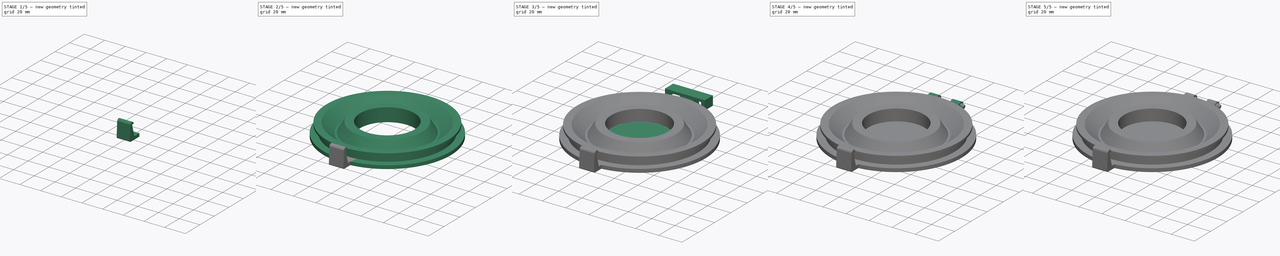
[diagram: build sequence overview — one tinted view per stage of 5, left to right]
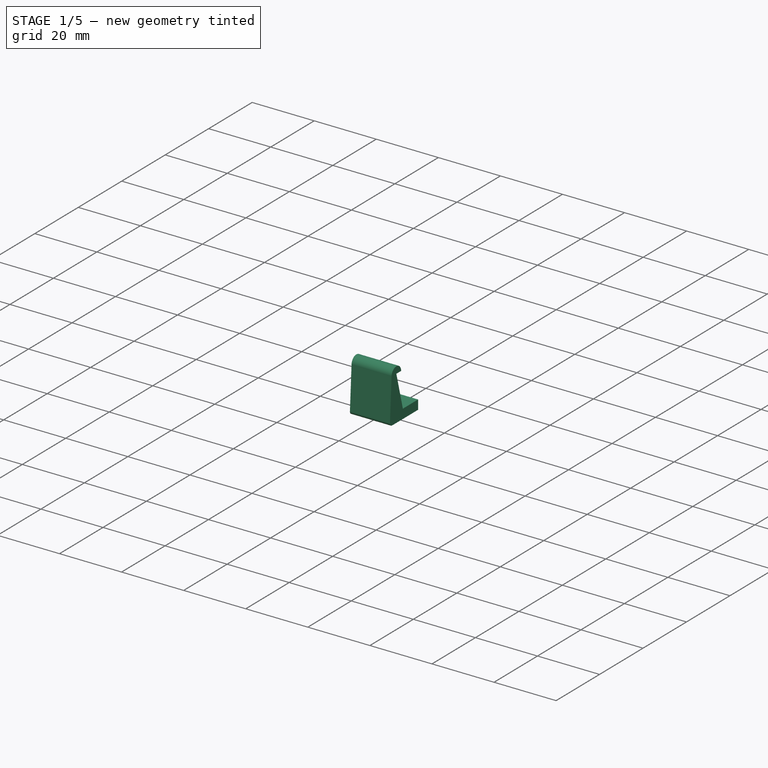
[diagram: stage 1 of 5 — iso view after this stage's code; geometry added in this stage tinted green]
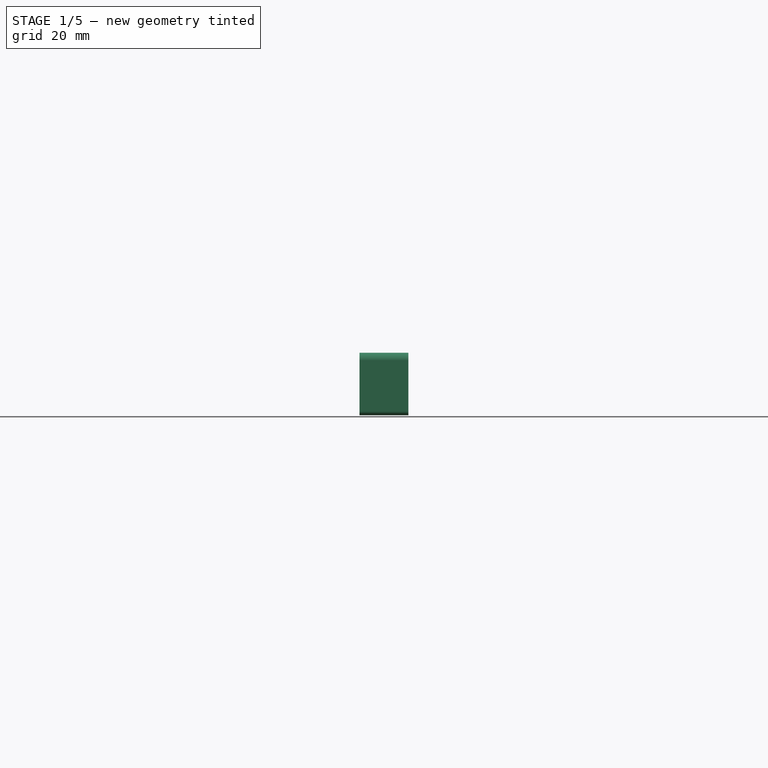
[diagram: stage 1 of 5 — front view after this stage's code; geometry added in this stage tinted green]
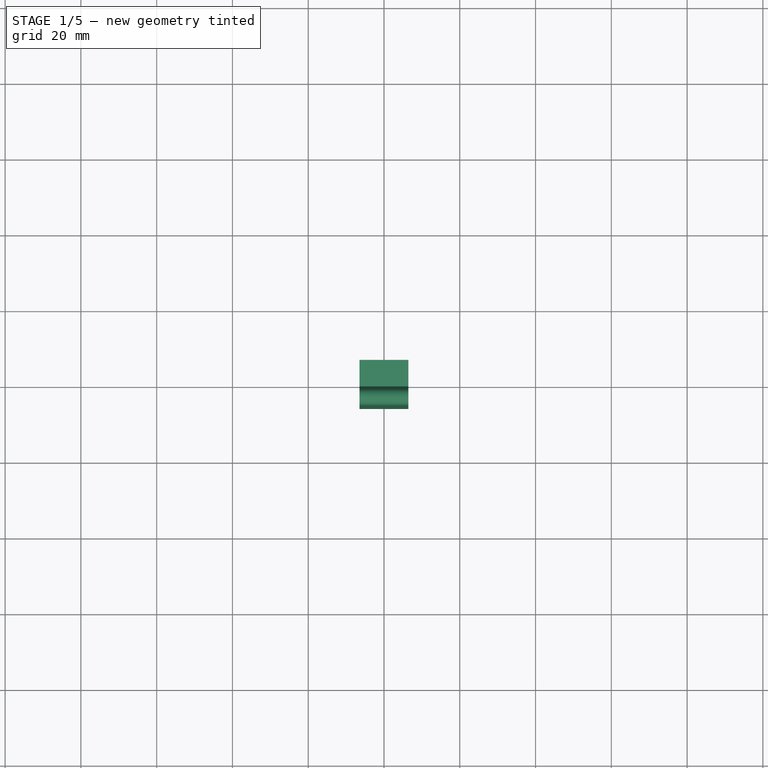
[diagram: stage 1 of 5 — top view after this stage's code; geometry added in this stage tinted green]
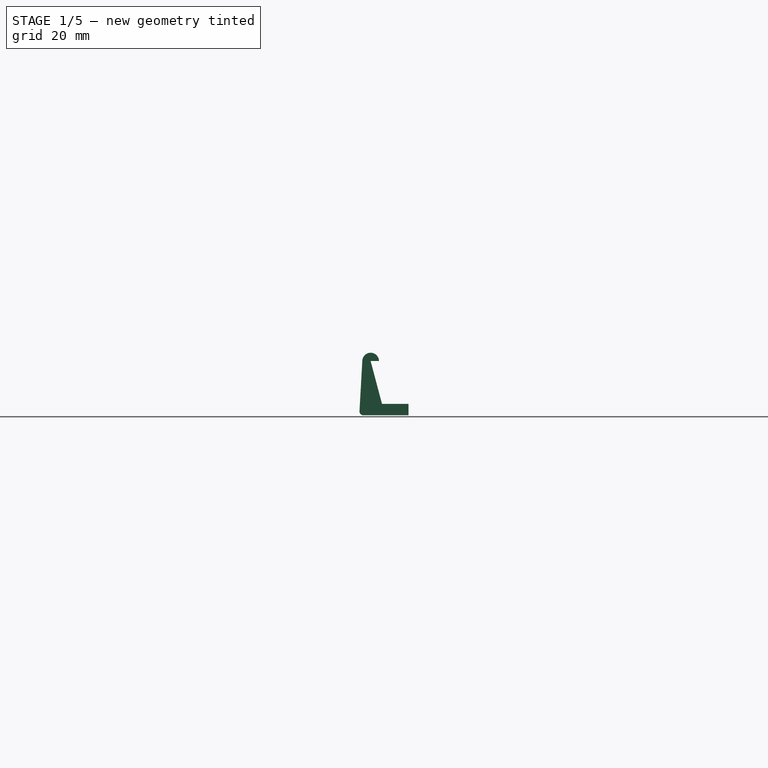
[diagram: stage 1 of 5 — right view after this stage's code; geometry added in this stage tinted green]
FCSTD DOCUMENT  (FreeCAD 1.0R39285 (Git))
Label: TinecoPureOneXDustLid
License: All rights reserved
LicenseURL: https://en.wikipedia.org/wiki/All_rights_reserved
objects: Sketcher::SketchObject×12, PartDesign::Pad×8, PartDesign::Body×5, PartDesign::Boolean×2, PartDesign::Hole×2, PartDesign::Revolution×2, Part::Fuse×1, PartDesign::Fillet×1, Part::MultiFuse×1
note: 74 computed .brp shape members not serialized (recipe doc carries the construction recipe); baked Part::Feature solids carry a one-line shape summary decoded from their .brp

FEATURE [PartDesign::Pad] Pad006  label="Latch Pad"
  Direction = (1,0,0)
  Length = 12.9
  Length2 = 10
  Midplane = true
  Placement = pos=(0,0,0) rot=(1,1,1;2.0944rad)
  Profile = -> Sketch007
  ReferenceAxis = -> Sketch007 [N_Axis]
  Refine = true
  Suppressed = false
  Type = 0
FEATURE [Sketcher::SketchObject] Sketch011
  ArcFitTolerance = 1e-06
  AttachmentSupport = -> [Pad006]
  FullyConstrained = false
  MakeInternals = false
  MapMode = 5
  Placement = pos=(0,0,2.65e-14) rot=(0.707107,0.707107,0;3.14159rad)
  sketch-geometry (4):
    g0: LineSegment [constr] StartX=-123.716 StartY=4.06178 StartZ=0 EndX=-123.716 EndY=-4.06178 EndZ=0
    g1: Circle CenterX=-123.716 CenterY=0 CenterZ=0 NormalX=0 NormalY=0 NormalZ=1 AngleXU=0 Radius=0.339528
    g2: Circle CenterX=-123.716 CenterY=4.06178 CenterZ=0 NormalX=0 NormalY=0 NormalZ=1 AngleXU=0 Radius=0.363453
    g3: Circle CenterX=-123.716 CenterY=-4.06178 CenterZ=0 NormalX=0 NormalY=0 NormalZ=1 AngleXU=0 Radius=0.409534
  constraints (4):
    c: Symmetric(g0,g0,g-1)
    c: Symmetric(g0,g0,g1)
    c: Coincident(g2,g0)
    c: Coincident(g3,g0)
FEATURE [PartDesign::Hole] Hole001
  BaseFeature = -> Pad006
  CustomThreadClearance = 0
  Depth = 15
  DepthType = 0
  Diameter = 0.2
  DrillForDepth = false
  DrillPoint = 1
  DrillPointAngle = 118
  HoleCutCountersinkAngle = 90
  HoleCutCustomValues = false
  HoleCutDepth = 0
  HoleCutDiameter = 0
  HoleCutType = 0
  ModelThread = false
  Placement = pos=(0,0,0) rot=(1,1,1;2.0944rad)
  Profile = -> Sketch011
  Refine = true
  Suppressed = false
  Tapered = false
  TaperedAngle = 90
  ThreadClass = 0
  ThreadDepth = 15
  ThreadDepthType = 0
  ThreadDirection = 0
  ThreadFit = 0
  ThreadSize = 0
  ThreadType = 0
  Threaded = false
  UseCustomThreadClearance = false
FEATURE [PartDesign::Fillet] Fillet
  Base = -> Hole001 [Edge10]
  BaseFeature = -> Hole001
  Placement = pos=(0,0,0) rot=(1,1,1;2.0944rad)
  Radius = 1
  Refine = true
  SupportTransform = false
  Suppressed = false
  UseAllEdges = false
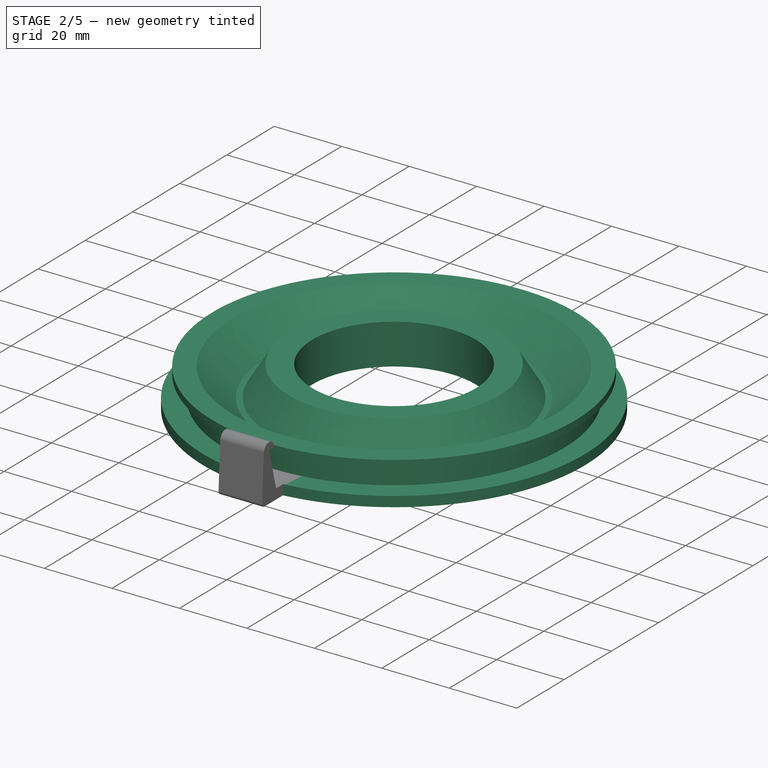
[diagram: stage 2 of 5 — iso view after this stage's code; geometry added in this stage tinted green]
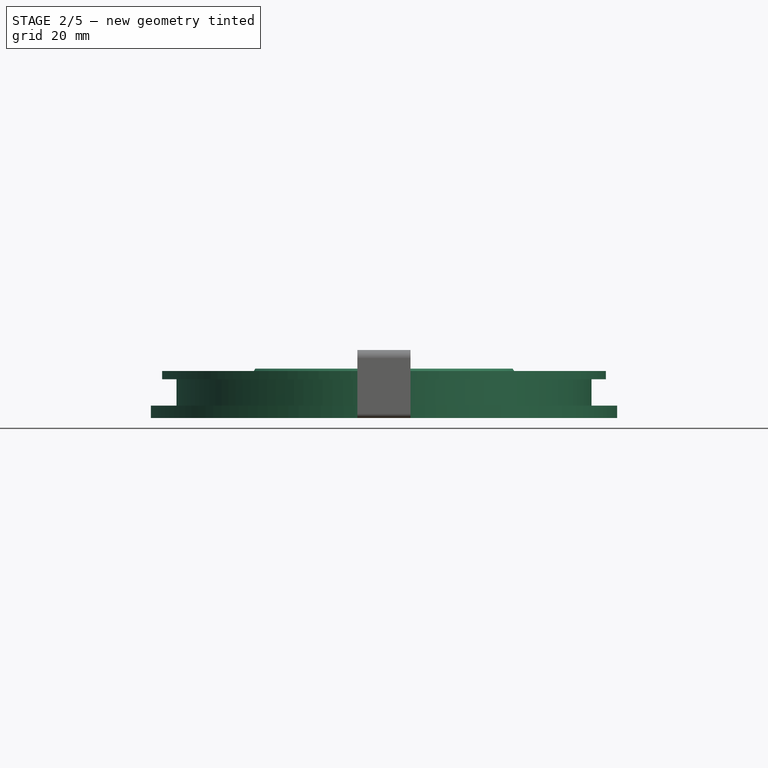
[diagram: stage 2 of 5 — front view after this stage's code; geometry added in this stage tinted green]
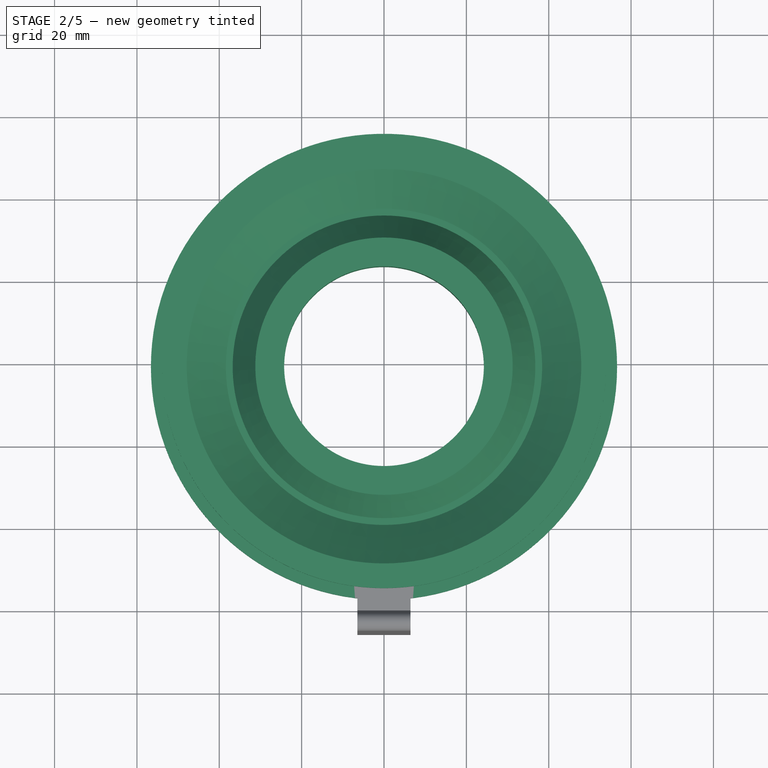
[diagram: stage 2 of 5 — top view after this stage's code; geometry added in this stage tinted green]
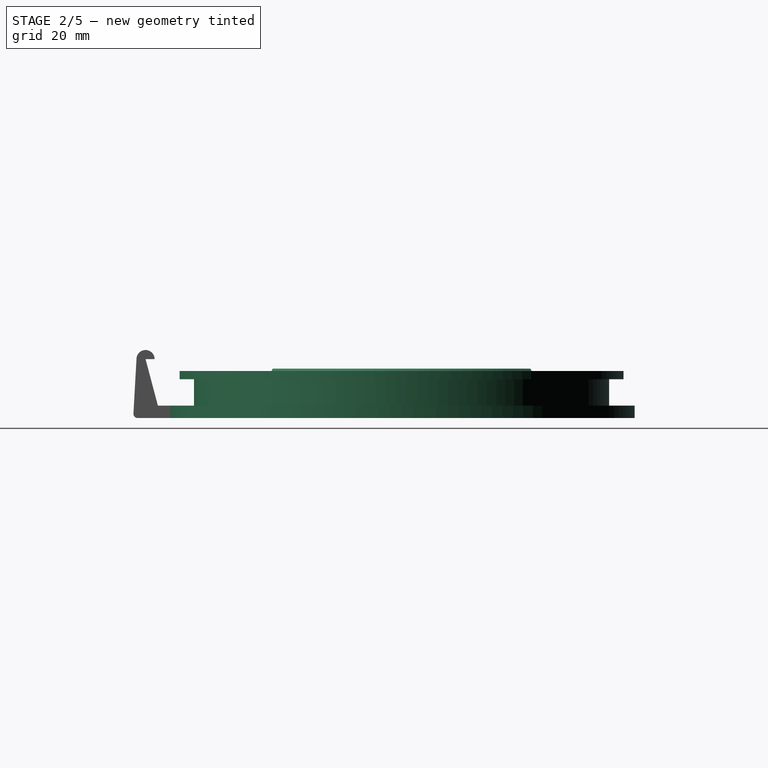
[diagram: stage 2 of 5 — right view after this stage's code; geometry added in this stage tinted green]
FEATURE [PartDesign::Body] Body  label="Hinge Body"
  AllowCompound = false
  Group = -> [Sketch001,Pad,Sketch002,Pad001,Boolean,Boolean001,Sketch005,Pad004]
  Origin = -> Origin
  Tip = -> Pad004
FEATURE [Sketcher::SketchObject] Sketch006  label="Lid Sketch"
  ArcFitTolerance = 1e-06
  AttachmentSupport = -> [XY_Plane]
  FullyConstrained = true
  MakeInternals = false
  MapMode = 5
  sketch-geometry (2):
    g0: Circle CenterX=0 CenterY=-60.6 CenterZ=0 NormalX=0 NormalY=0 NormalZ=1 AngleXU=0 Radius=56.6
    g1: GeomPoint X=0 Y=-117.2 Z=0
  constraints (5):
    c: Diameter(g0) = 113.2
    c: PointOnObject(g0,g-2)
    c: PointOnObject(g1,g0)
    c: PointOnObject(g1,g-2)
    c: DistanceY(g1,g-1) = 117.2
FEATURE [Sketcher::SketchObject] Sketch  label="Hinge Footprint TOP"
  ArcFitTolerance = 1e-06
  AttachmentSupport = -> [XY_Plane]
  ExternalGeometry = -> [Sketch006]
  FullyConstrained = true
  MakeInternals = false
  MapMode = 5
  sketch-geometry (5):
    g0: LineSegment [constr] StartX=-13.5 StartY=-3.7 StartZ=0 EndX=13.5 EndY=-3.7 EndZ=0
    g1: LineSegment [constr] StartX=13.5 StartY=-3.7 StartZ=0 EndX=13.5 EndY=3.7 EndZ=0
    g2: LineSegment [constr] StartX=13.5 StartY=3.7 StartZ=0 EndX=-13.5 EndY=3.7 EndZ=0
    g3: LineSegment [constr] StartX=-13.5 StartY=3.7 StartZ=0 EndX=-13.5 EndY=-3.7 EndZ=0
    g4: GeomPoint [constr] X=0 Y=0 Z=0
  constraints (12):
    c: Coincident(g0,g1)
    c: Coincident(g1,g2)
    c: Coincident(g2,g3)
    c: Coincident(g3,g0)
    c: Horizontal(g0)
    c: Horizontal(g2)
    c: Vertical(g1)
    c: Vertical(g3)
    c: Symmetric(g2,g0,g4)
    c: Distance(g1,g3) = 27
    c: Distance(g0,g2) = 7.4
    c: Coincident(g4,g-1)
FEATURE [Sketcher::SketchObject] Sketch007  label="Latch Sketch"
  ArcFitTolerance = 1e-06
  AttachmentSupport = -> [YZ_Plane004]
  FullyConstrained = false
  MakeInternals = false
  MapMode = 5
  Placement = pos=(0,0,0) rot=(0.57735,0.57735,0.57735;2.0944rad)
  sketch-geometry (14):
    g0: LineSegment [constr] StartX=0 StartY=0 StartZ=0 EndX=0 EndY=3 EndZ=0
    g1: LineSegment [constr] StartX=-117.77 StartY=3 StartZ=0 EndX=0 EndY=3 EndZ=0
    g2: LineSegment [constr] StartX=-117.77 StartY=0 StartZ=0 EndX=-117.77 EndY=3 EndZ=0
    g3: LineSegment StartX=-117.77 StartY=0 StartZ=0 EndX=-125.77 EndY=0 EndZ=0
    g4: LineSegment StartX=-119.77 StartY=3 StartZ=0 EndX=-122.77 EndY=14.3088 EndZ=0
    g5: LineSegment [constr] StartX=-119.77 StartY=3 StartZ=0 EndX=-119.77 EndY=43.4878 EndZ=0
    g6: LineSegment [constr] StartX=-122.77 StartY=14.3088 StartZ=0 EndX=-119.77 EndY=14.3088 EndZ=0
    g7: LineSegment StartX=-117.77 StartY=3 StartZ=0 EndX=-119.77 EndY=3 EndZ=0
    g8: LineSegment StartX=-122.77 StartY=14.3088 StartZ=0 EndX=-120.57 EndY=14.3088 EndZ=0
    g9: ArcOfCircle CenterX=-122.77 CenterY=14.3088 CenterZ=0 NormalX=0 NormalY=0 NormalZ=1 AngleXU=0 Radius=2.2 StartAngle=2.119e-13 EndAngle=3.14159
    g10: LineSegment StartX=-124.97 StartY=14.3088 StartZ=0 EndX=-125.77 EndY=0 EndZ=0
    g11: LineSegment StartX=-117.77 StartY=3 StartZ=0 EndX=-112.77 EndY=3 EndZ=0
    g12: LineSegment StartX=-112.77 StartY=3 StartZ=0 EndX=-112.77 EndY=0 EndZ=0
    g13: LineSegment StartX=-112.77 StartY=0 StartZ=0 EndX=-117.77 EndY=0 EndZ=0
  constraints (39):
    c: Distance(g0) = 3
    c: Coincident(g0,g-1)
    c: PointOnObject(g0,g-2)
    c: Coincident(g1,g0)
    c: Vertical(g2)
    c: Distance(g3) = 8
    c: Coincident(g3,g2)
    c: PointOnObject(g3,g-1)
    c: Distance(g4) = 11.7
    c: Vertical(g5)
    c: Coincident(g6,g4)
    c: PointOnObject(g6,g5)
    c: Perpendicular(g5,g6)
    c: DistanceX(g6,g6) = 3
    c: Distance(g7) = 2
    c: Coincident(g7,g2)
    c: Coincident(g7,g5)
    c: Horizontal(g7)
    c: Coincident(g4,g5)
    c: Distance(g8) = 2.2
    c: Coincident(g8,g4)
    c: PointOnObject(g8,g6)
    c: Angle(g9) = 3.14159
    c: Coincident(g9,g4)
    c: Coincident(g9,g8)
    c: Coincident(g10,g9)
    c: Coincident(g10,g3)
    c: Coincident(g1,g2)
    c: Horizontal(g3)
    c: DistanceY(g2,g1) = 3
    c: Distance(g11) = 5
    c: Horizontal(g11)
    c: Coincident(g11,g1)
    c: Coincident(g12,g11)
    c: PointOnObject(g12,g-1)
    c: Vertical(g12)
    c: Coincident(g13,g12)
    c: Coincident(g13,g2)
    c: DistanceX(g4,g-1) = 119.77
FEATURE [PartDesign::Pad] Pad005  label="Lid Pad"
  Direction = (0,0,1)
  Length = 3
  Length2 = 10
  Profile = -> Sketch006
  ReferenceAxis = -> Sketch006 [N_Axis]
  Refine = true
  Suppressed = false
  Type = 0
FEATURE [PartDesign::Hole] Hole
  BaseFeature = -> Pad005
  CustomThreadClearance = 0
  Depth = 25
  DepthType = 0
  Diameter = 48.5
  DrillForDepth = false
  DrillPoint = 1
  DrillPointAngle = 118
  HoleCutCountersinkAngle = 90
  HoleCutCustomValues = false
  HoleCutDepth = 0
  HoleCutDiameter = 6.1
  HoleCutType = 0
  ModelThread = false
  Profile = -> Pad005 [Face3]
  Refine = true
  Suppressed = false
  Tapered = false
  TaperedAngle = 90
  ThreadClass = 0
  ThreadDepth = 25
  ThreadDepthType = 0
  ThreadDirection = 0
  ThreadFit = 0
  ThreadSize = 0
  ThreadType = 0
  Threaded = false
  UseCustomThreadClearance = false
FEATURE [Sketcher::SketchObject] Sketch008
  ArcFitTolerance = 1e-06
  AttachmentSupport = -> [YZ_Plane003]
  ExternalGeometry = -> [Hole]
  FullyConstrained = true
  MakeInternals = false
  MapMode = 5
  Placement = pos=(0,0,0) rot=(0.57735,0.57735,0.57735;2.0944rad)
  sketch-geometry (4):
    g0: LineSegment StartX=-36.35 StartY=3 StartZ=0 EndX=-36.35 EndY=12 EndZ=0
    g1: LineSegment StartX=-36.35 StartY=12 StartZ=0 EndX=-29.35 EndY=12 EndZ=0
    g2: LineSegment StartX=-36.35 StartY=3 StartZ=0 EndX=-23.85 EndY=3 EndZ=0
    g3: LineSegment StartX=-29.35 StartY=12 StartZ=0 EndX=-23.85 EndY=3 EndZ=0
  constraints (11):
    c: Coincident(g0,g-4)
    c: Vertical(g0)
    c: DistanceY(g0,g0) = 9
    c: Coincident(g1,g0)
    c: Horizontal(g1)
    c: Distance(g1,g1) = 7
    c: Coincident(g2,g0)
    c: Horizontal(g2)
    c: DistanceX(g2,g2) = 12.5
    c: Coincident(g3,g1)
    c: Coincident(g3,g2)
FEATURE [PartDesign::Revolution] Revolution
  Angle = 360
  Angle2 = 60
  Axis = (0,0,1)
  Base = (0,-60.6,3)
  BaseFeature = -> Hole
  Profile = -> Sketch008
  ReferenceAxis = -> Hole [Edge5]
  Refine = true
  Suppressed = false
  Type = 0
FEATURE [Sketcher::SketchObject] Sketch009
  ArcFitTolerance = 1e-06
  AttachmentSupport = -> [YZ_Plane003]
  ExternalGeometry = -> [Revolution]
  FullyConstrained = true
  MakeInternals = false
  MapMode = 5
  Placement = pos=(0,0,0) rot=(0.57735,0.57735,0.57735;2.0944rad)
  sketch-geometry (6):
    g0: LineSegment StartX=-111 StartY=3 StartZ=0 EndX=-99 EndY=3 EndZ=0
    g1: LineSegment StartX=-114.5 StartY=11.4 StartZ=0 EndX=-108.5 EndY=11.4 EndZ=0
    g2: LineSegment StartX=-108.5 StartY=11.4 StartZ=0 EndX=-99 EndY=3 EndZ=0
    g3: LineSegment StartX=-111 StartY=3 StartZ=0 EndX=-111 EndY=9.4 EndZ=0
    g4: LineSegment StartX=-111 StartY=9.4 StartZ=0 EndX=-114.5 EndY=9.4 EndZ=0
    g5: LineSegment StartX=-114.5 StartY=9.4 StartZ=0 EndX=-114.5 EndY=11.4 EndZ=0
  constraints (18):
    c: Distance(g0) = 12
    c: Horizontal(g0)
    c: PointOnObject(g0,g-3)
    c: DistanceX(g-3,g0) = 6.2
    c: Distance(g1) = 6
    c: Horizontal(g1)
    c: Coincident(g2,g1)
    c: Coincident(g2,g0)
    c: Distance(g3) = 6.4
    c: Vertical(g3)
    c: Distance(g4) = 3.5
    c: Coincident(g4,g3)
    c: Horizontal(g4)
    c: Distance(g5) = 2
    c: Coincident(g5,g4)
    c: Vertical(g5)
    c: Coincident(g0,g3)
    c: Coincident(g1,g5)
FEATURE [PartDesign::Revolution] Revolution001
  Angle = 360
  Angle2 = 60
  Axis = (0,0,1)
  Base = (0,-60.6,3)
  BaseFeature = -> Revolution
  Profile = -> Sketch009
  ReferenceAxis = -> Revolution [Edge9]
  Refine = true
  Suppressed = false
  Type = 0
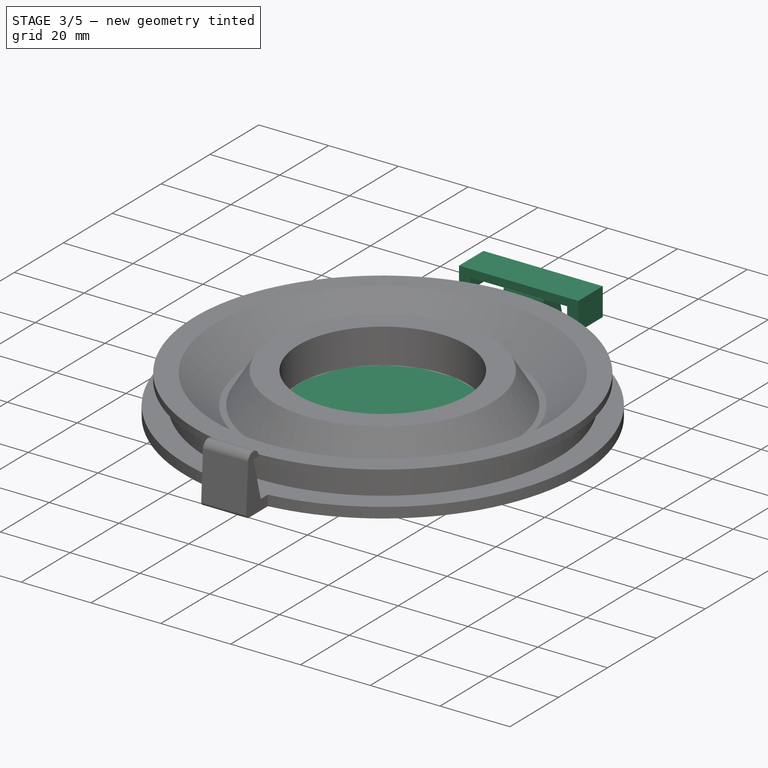
[diagram: stage 3 of 5 — iso view after this stage's code; geometry added in this stage tinted green]
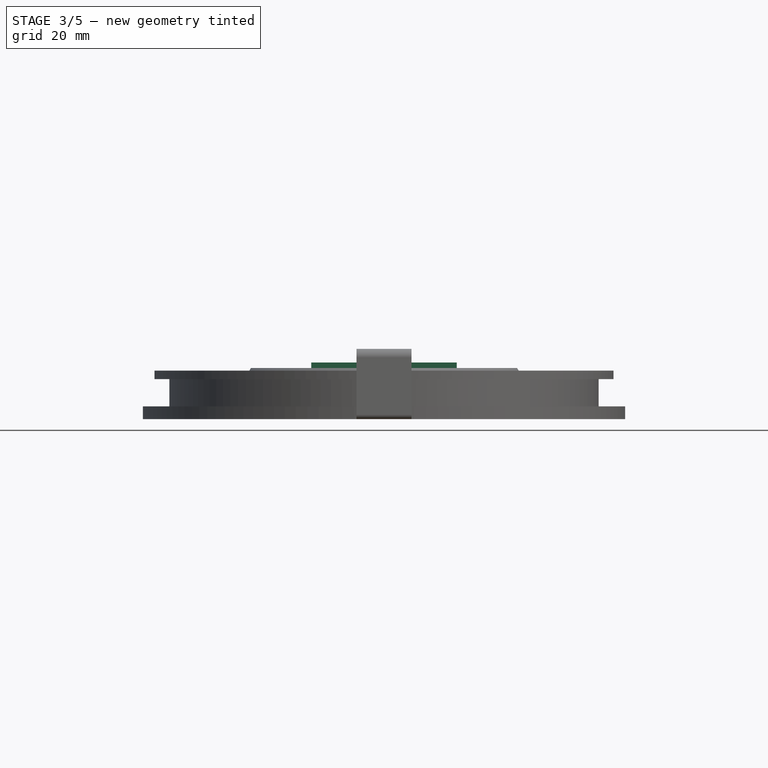
[diagram: stage 3 of 5 — front view after this stage's code; geometry added in this stage tinted green]
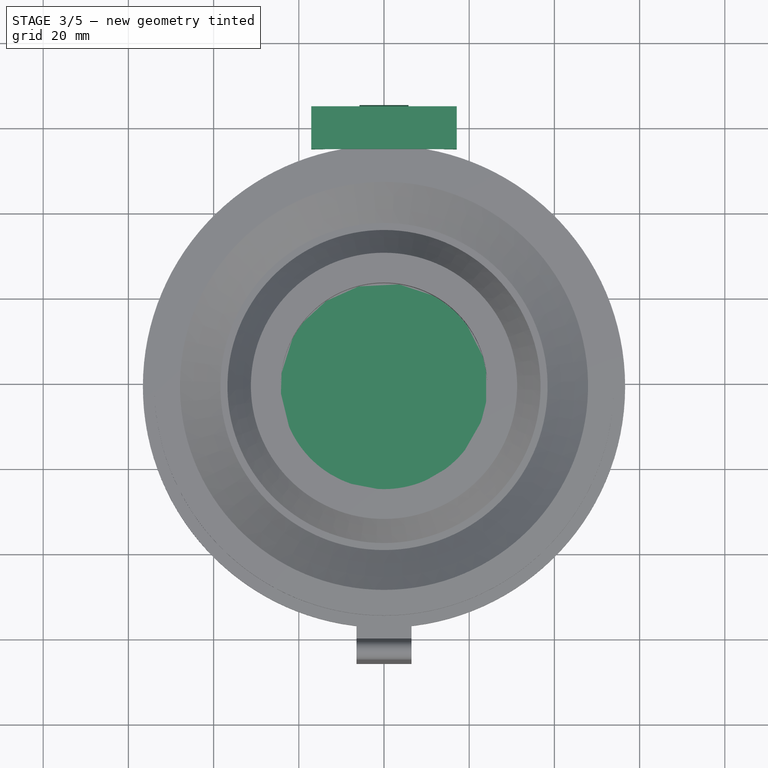
[diagram: stage 3 of 5 — top view after this stage's code; geometry added in this stage tinted green]
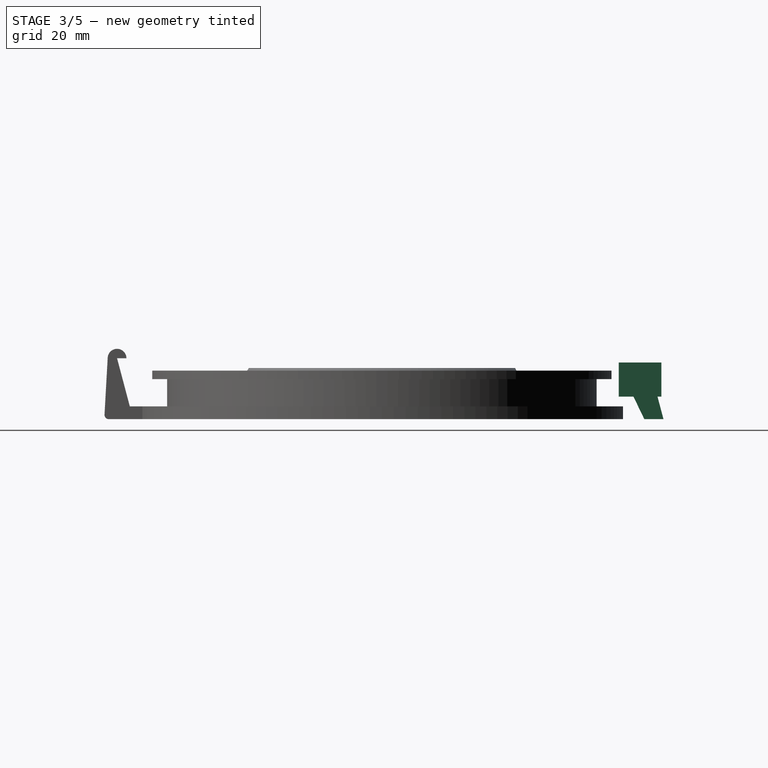
[diagram: stage 3 of 5 — right view after this stage's code; geometry added in this stage tinted green]
FEATURE [Sketcher::SketchObject] Sketch003  label="Cutout Sketch"
  ArcFitTolerance = 1e-06
  AttachmentSupport = -> [YZ_Plane001]
  FullyConstrained = true
  MakeInternals = false
  MapMode = 5
  Placement = pos=(0,0,0) rot=(0.57735,0.57735,0.57735;2.0944rad)
  sketch-geometry (4):
    g0: ArcOfCircle CenterX=0 CenterY=9 CenterZ=0 NormalX=0 NormalY=0 NormalZ=1 AngleXU=0 Radius=3 StartAngle=0.26014 EndAngle=3.58993
    g1: LineSegment StartX=5.5 StartY=0 StartZ=0 EndX=2.89906 EndY=9.77165 EndZ=0
    g2: LineSegment StartX=1 StartY=0 StartZ=0 EndX=-2.70351 EndY=7.69961 EndZ=0
    g3: LineSegment StartX=1 StartY=0 StartZ=0 EndX=5.5 EndY=0 EndZ=0
  constraints (11):
    c: Diameter(g0) = 6
    c: PointOnObject(g0,g-2)
    c: DistanceY(g-1,g0) = 9
    c: PointOnObject(g1,g-1)
    c: PointOnObject(g2,g-1)
    c: Coincident(g3,g2)
    c: Coincident(g3,g1)
    c: DistanceX(g-1,g2) = 1
    c: Distance(g1,g-2) = 5.5
    c: Tangent(g0,g2) = 1.5708
    c: Tangent(g0,g1) = -1.5708
FEATURE [PartDesign::Pad] Pad002
  Direction = (1,0,0)
  Length = 11.5
  Length2 = 10
  Midplane = true
  Placement = pos=(0,0,0) rot=(1,1,1;2.0944rad)
  Profile = -> Sketch003
  ReferenceAxis = -> Sketch003 [N_Axis]
  Refine = true
  Suppressed = false
  Type = 0
FEATURE [Sketcher::SketchObject] Sketch004  label="Angle Cut Sketch"
  ArcFitTolerance = 1e-06
  AttachmentSupport = -> [XZ_Plane002]
  FullyConstrained = false
  MakeInternals = false
  MapMode = 5
  Placement = pos=(0,0,0) rot=(1,0,0;1.5708rad)
  sketch-geometry (12):
    g0: GeomPoint X=17.0909 Y=5.29138 Z=0
    g1: GeomPoint X=-17.0909 Y=5.29138 Z=0
    g2: GeomPoint X=13.9027 Y=8.04686 Z=0
    g3: GeomPoint X=-13.9027 Y=8.04686 Z=0
    g4: LineSegment StartX=17.0909 StartY=5.29138 StartZ=0 EndX=17.0909 EndY=13.2914 EndZ=0
    g5: LineSegment StartX=-17.0909 StartY=5.29138 StartZ=0 EndX=-17.0909 EndY=13.2914 EndZ=0
    g6: LineSegment StartX=-17.0909 StartY=13.2914 StartZ=0 EndX=17.0909 EndY=13.2914 EndZ=0
    g7: LineSegment StartX=-13.9027 StartY=8.04686 StartZ=0 EndX=-17.0909 EndY=5.29138 EndZ=0
    g8: LineSegment StartX=17.0909 StartY=5.29138 StartZ=0 EndX=13.9027 EndY=8.04686 EndZ=0
    g9: LineSegment StartX=13.9027 StartY=8.04686 StartZ=0 EndX=13.9027 EndY=11.0469 EndZ=0
    g10: LineSegment StartX=-13.9027 StartY=8.04686 StartZ=0 EndX=-13.9027 EndY=11.0469 EndZ=0
    g11: LineSegment StartX=13.9027 StartY=11.0469 StartZ=0 EndX=-13.9027 EndY=11.0469 EndZ=0
  constraints (22):
    c: Symmetric(g1,g0,g-2)
    c: Symmetric(g2,g3,g-2)
    c: Coincident(g4,g0)
    c: Vertical(g4)
    c: Coincident(g5,g1)
    c: Vertical(g5)
    c: DistanceY(g4,g4) = 8
    c: Equal(g4,g5)
    c: Coincident(g6,g5)
    c: Coincident(g6,g4)
    c: Coincident(g7,g3)
    c: Coincident(g7,g1)
    c: Coincident(g8,g0)
    c: Coincident(g8,g2)
    c: Coincident(g9,g2)
    c: Vertical(g9)
    c: Coincident(g10,g3)
    c: Vertical(g10)
    c: DistanceY(g9,g9) = 3
    c: Equal(g9,g10)
    c: Coincident(g11,g9)
    c: Coincident(g11,g10)
FEATURE [PartDesign::Pad] Pad003  label="Angle Cut Pad"
  Direction = (0,-1,2e-16)
  Length = 10
  Length2 = 10
  Midplane = true
  Placement = pos=(0,0,0) rot=(1,0,0;1.5708rad)
  Profile = -> Sketch004
  ReferenceAxis = -> Sketch004 [N_Axis]
  Refine = true
  Suppressed = false
  Type = 0
FEATURE [Sketcher::SketchObject] Sketch010  label="Hole cover"
  ArcFitTolerance = 1e-06
  AttachmentSupport = -> [XY_Plane003]
  ExternalGeometry = -> [Revolution001]
  FullyConstrained = true
  MakeInternals = false
  MapMode = 5
  sketch-geometry (1):
    g0: Circle CenterX=0 CenterY=-60.6 CenterZ=0 NormalX=0 NormalY=0 NormalZ=1 AngleXU=0 Radius=24.25
  constraints (2):
    c: Coincident(g0,g-3)
    c: PointOnObject(g-3,g0)
FEATURE [PartDesign::Pad] Pad007  label="Filter Hole Cover (suppres to make hole)"
  BaseFeature = -> Revolution001
  Direction = (0,0,1)
  Length = 2
  Length2 = 10
  Profile = -> Sketch010
  ReferenceAxis = -> Sketch010 [N_Axis]
  Refine = true
  Suppressed = false
  Type = 0
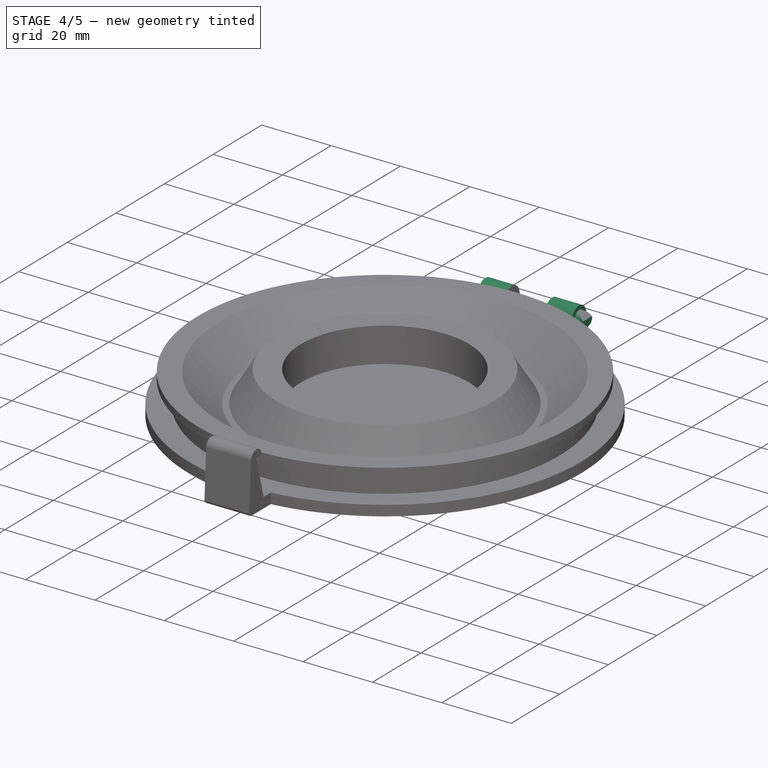
[diagram: stage 4 of 5 — iso view after this stage's code; geometry added in this stage tinted green]
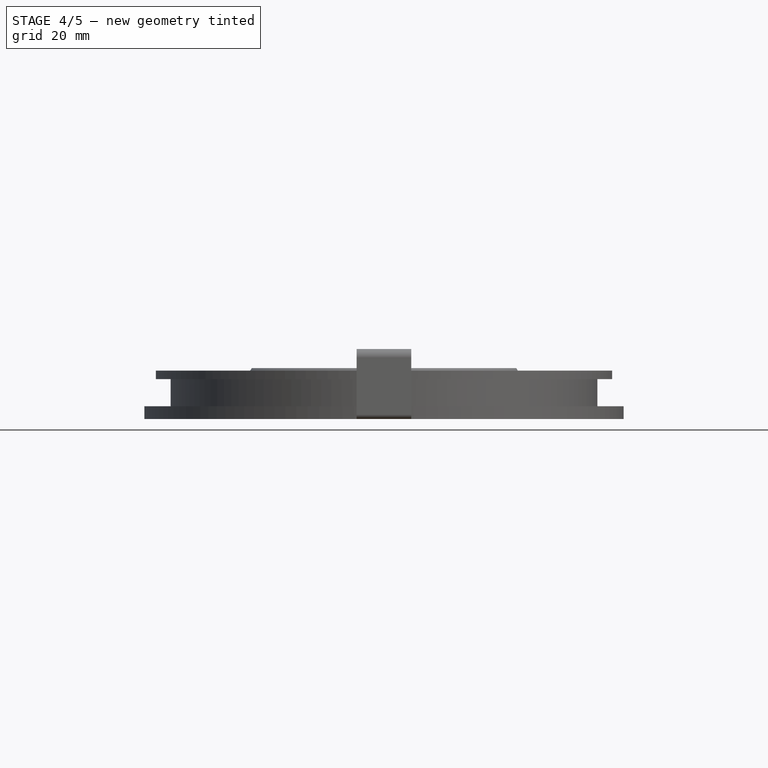
[diagram: stage 4 of 5 — front view after this stage's code; geometry added in this stage tinted green]
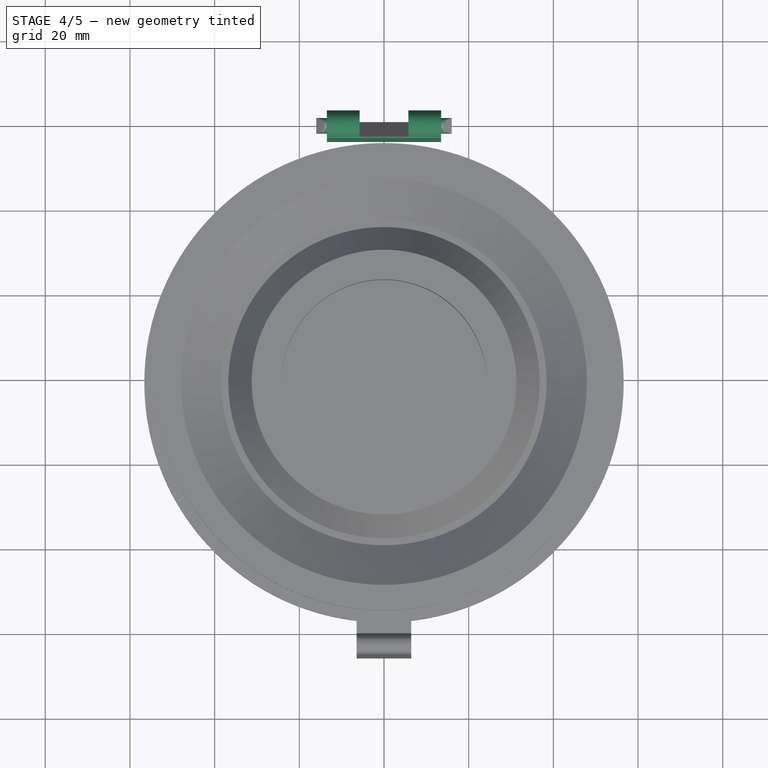
[diagram: stage 4 of 5 — top view after this stage's code; geometry added in this stage tinted green]
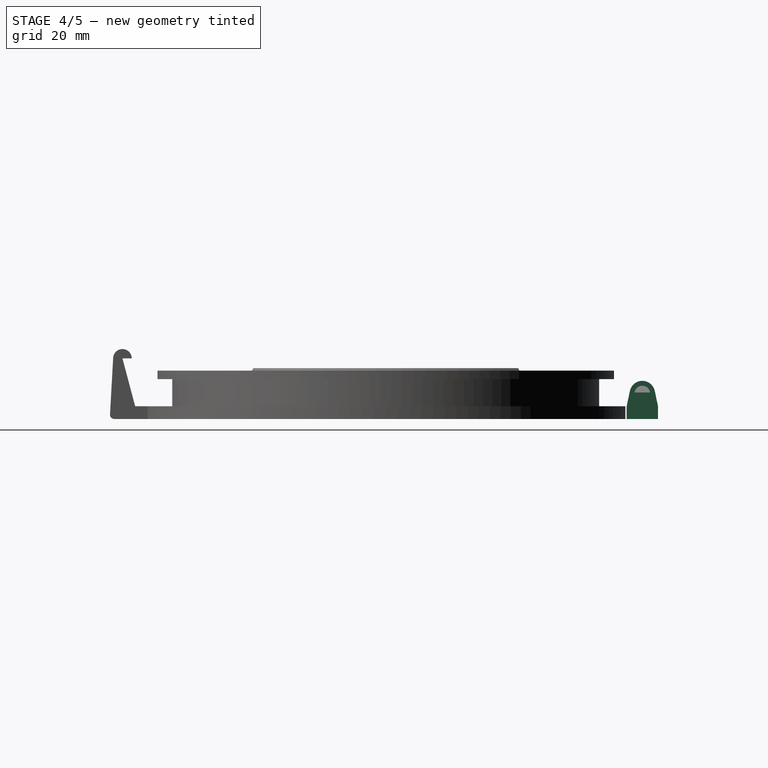
[diagram: stage 4 of 5 — right view after this stage's code; geometry added in this stage tinted green]
FEATURE [Sketcher::SketchObject] Sketch001  label="Hinge Cut"
  ArcFitTolerance = 1e-06
  AttachmentSupport = -> [YZ_Plane]
  FullyConstrained = true
  MakeInternals = false
  MapMode = 5
  Placement = pos=(0,0,0) rot=(0.57735,0.57735,0.57735;2.0944rad)
  sketch-geometry (10):
    g0: LineSegment StartX=-3.7 StartY=3 StartZ=0 EndX=-3.7 EndY=0 EndZ=0
    g1: LineSegment [constr] StartX=-3.7 StartY=3 StartZ=0 EndX=3.7 EndY=3 EndZ=0
    g2: LineSegment [constr] StartX=-2e-16 StartY=3 StartZ=0 EndX=-2e-16 EndY=9 EndZ=0
    g3: ArcOfCircle CenterX=-2e-16 CenterY=6 CenterZ=0 NormalX=0 NormalY=0 NormalZ=1 AngleXU=0 Radius=3 StartAngle=0.2082 EndAngle=2.93339
    g4: LineSegment [constr] StartX=-2e-16 StartY=9 StartZ=0 EndX=0 EndY=9 EndZ=0
    g5: LineSegment [constr] StartX=-2e-16 StartY=6 StartZ=0 EndX=0 EndY=6 EndZ=0
    g6: LineSegment StartX=-3.7 StartY=3 StartZ=0 EndX=-2.93521 EndY=6.6201 EndZ=0
    g7: LineSegment StartX=3.7 StartY=3 StartZ=0 EndX=2.93521 EndY=6.6201 EndZ=0
    g8: LineSegment StartX=3.7 StartY=0 StartZ=0 EndX=3.7 EndY=3 EndZ=0
    g9: LineSegment StartX=-3.7 StartY=0 StartZ=0 EndX=3.7 EndY=0 EndZ=0
  constraints (26):
    c: Vertical(g0)
    c: Distance(g1) = 7.4
    c: Horizontal(g1)
    c: Coincident(g1,g0)
    c: Symmetric(g1,g1,g2)
    c: Vertical(g2)
    c: DistanceY(g2,g2) = 6
    c: PointOnObject(g3,g2)
    c: Coincident(g4,g2)
    c: PointOnObject(g4,g-2)
    c: Horizontal(g4)
    c: Coincident(g5,g3)
    c: PointOnObject(g5,g-2)
    c: Horizontal(g5)
    c: Distance(g5,g4) = 3
    c: Diameter(g3) = 6
    c: Coincident(g6,g0)
    c: Coincident(g7,g1)
    c: Tangent(g3,g7) = -1.5708
    c: Tangent(g3,g6) = 1.5708
    c: Coincident(g0,g-3)
    c: DistanceY(g0,g0) = 3
    c: Coincident(g8,g-4)
    c: Coincident(g8,g1)
    c: Coincident(g9,g0)
    c: Coincident(g9,g8)
FEATURE [PartDesign::Pad] Pad  label="Hinge Pad"
  Direction = (1,0,0)
  Length = 27
  Length2 = 10
  Midplane = true
  Placement = pos=(0,0,0) rot=(1,1,1;2.0944rad)
  Profile = -> Sketch001
  ReferenceAxis = -> Sketch001 [N_Axis]
  Refine = true
  Suppressed = false
  Type = 0
FEATURE [Sketcher::SketchObject] Sketch002  label="Axle circle"
  ArcFitTolerance = 1e-06
  AttachmentSupport = -> [YZ_Plane]
  ExternalGeometry = -> [Pad]
  FullyConstrained = true
  MakeInternals = false
  MapMode = 5
  Placement = pos=(0,0,0) rot=(0.57735,0.57735,0.57735;2.0944rad)
  sketch-geometry (1):
    g0: Circle CenterX=0 CenterY=6 CenterZ=0 NormalX=0 NormalY=0 NormalZ=1 AngleXU=0 Radius=1.85
  constraints (2):
    c: Diameter(g0) = 3.7
    c: Coincident(g0,g-3)
FEATURE [PartDesign::Pad] Pad001  label="Axle Pad"
  BaseFeature = -> Pad
  Direction = (1,0,0)
  Length = 32
  Length2 = 10
  Midplane = true
  Placement = pos=(0,0,0) rot=(1,1,1;2.0944rad)
  Profile = -> Sketch002
  ReferenceAxis = -> Sketch002 [N_Axis]
  Refine = true
  Suppressed = false
  Type = 0
FEATURE [PartDesign::Body] Body001  label="Cutout Body"
  AllowCompound = false
  Group = -> [Sketch003,Pad002]
  Origin = -> Origin001
  Tip = -> Pad002
FEATURE [PartDesign::Boolean] Boolean
  BaseFeature = -> Pad001
  Group = -> [Body001]
  Refine = true
  Suppressed = false
  Type = 1
  UsePlacement = true
FEATURE [PartDesign::Body] Body002  label="Angle cut"
  AllowCompound = false
  Group = -> [Sketch004,Pad003]
  Origin = -> Origin002
  Tip = -> Pad003
FEATURE [PartDesign::Boolean] Boolean001
  BaseFeature = -> Boolean
  Group = -> [Body002]
  Refine = true
  Suppressed = false
  Type = 1
  UsePlacement = true
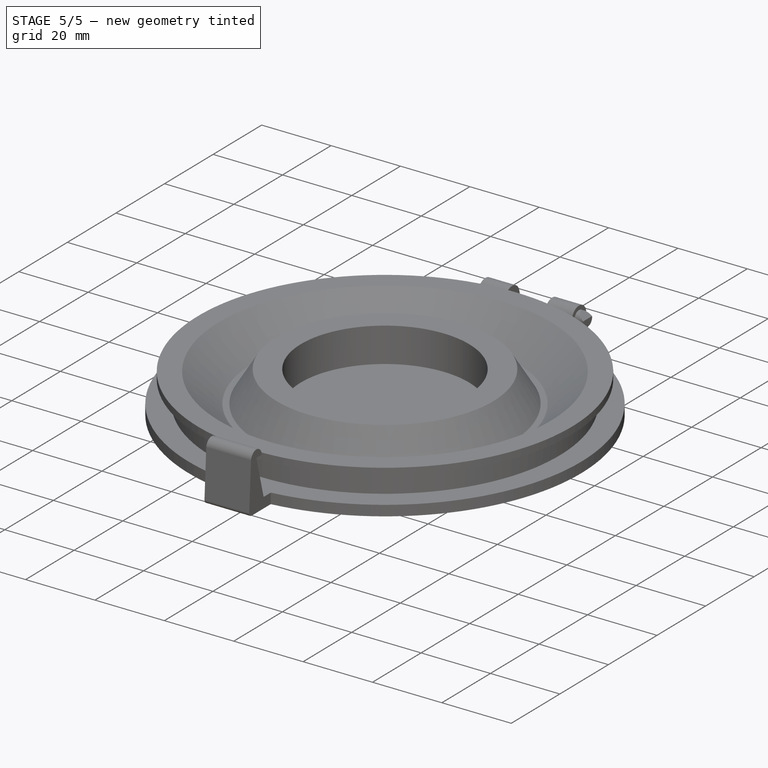
[diagram: stage 5 of 5 — iso view after this stage's code; geometry added in this stage tinted green]
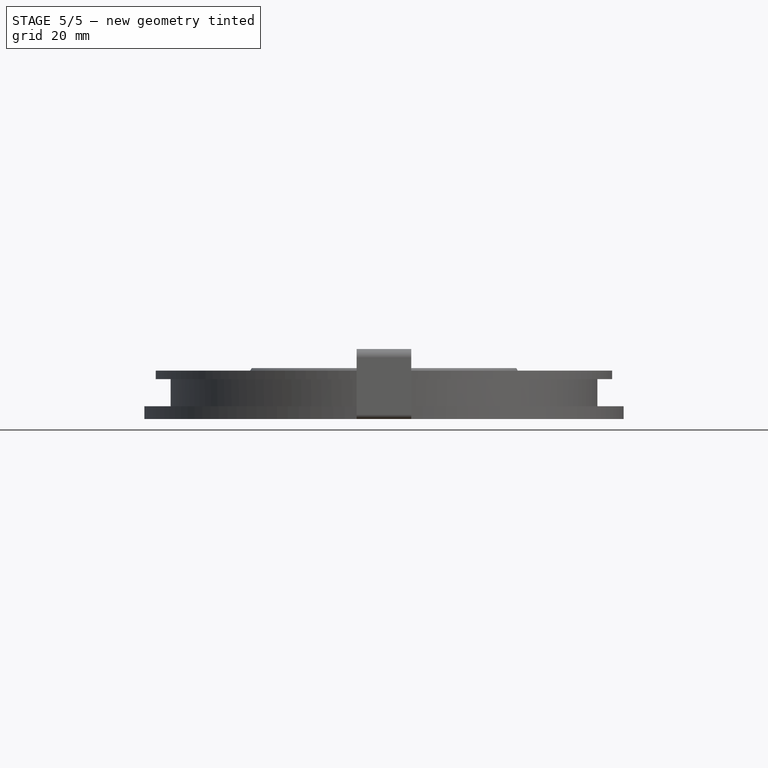
[diagram: stage 5 of 5 — front view after this stage's code; geometry added in this stage tinted green]
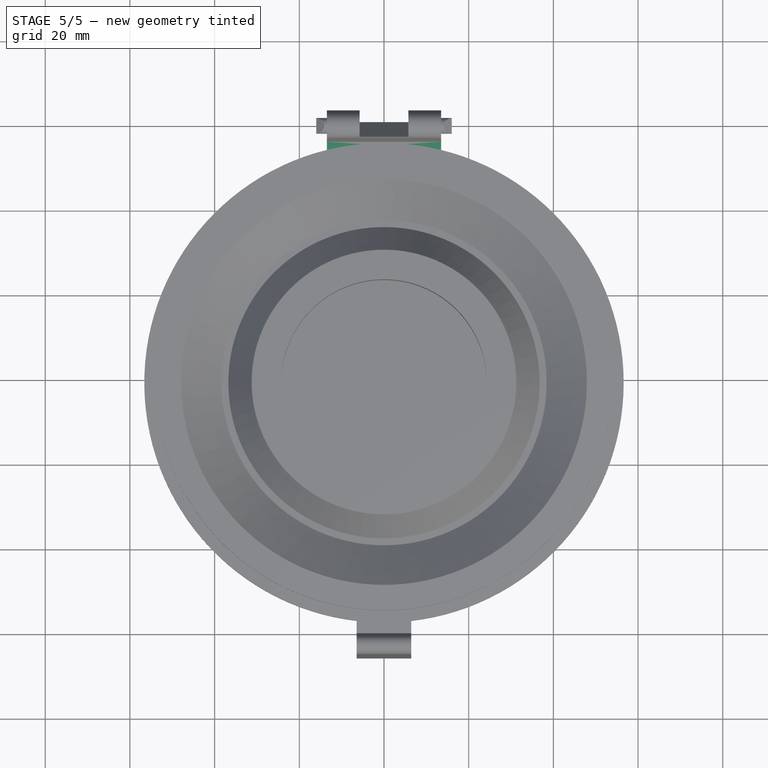
[diagram: stage 5 of 5 — top view after this stage's code; geometry added in this stage tinted green]
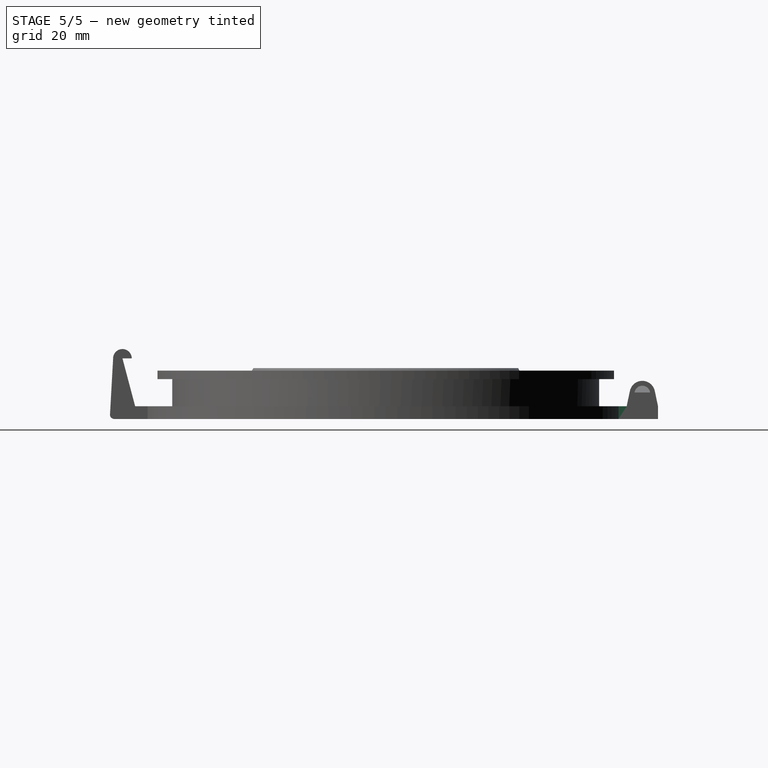
[diagram: stage 5 of 5 — right view after this stage's code; geometry added in this stage tinted green]
FEATURE [Sketcher::SketchObject] Sketch005  label="Bridget to lid sketch"
  ArcFitTolerance = 1e-06
  AttachmentSupport = -> [XY_Plane]
  ExternalGeometry = -> [Boolean001]
  FullyConstrained = false
  MakeInternals = false
  MapMode = 5
  sketch-geometry (4):
    g0: LineSegment StartX=-13.5 StartY=-3.7 StartZ=0 EndX=-13.5 EndY=-11.8615 EndZ=0
    g1: LineSegment StartX=-13.5 StartY=-11.8615 StartZ=0 EndX=13.5 EndY=-11.8615 EndZ=0
    g2: LineSegment StartX=13.5 StartY=-11.8615 StartZ=0 EndX=13.5 EndY=-3.7 EndZ=0
    g3: LineSegment StartX=13.5 StartY=-3.7 StartZ=0 EndX=-13.5 EndY=-3.7 EndZ=0
  constraints (9):
    c: Coincident(g0,g1)
    c: Coincident(g1,g2)
    c: Coincident(g2,g3)
    c: Coincident(g3,g0)
    c: Vertical(g0)
    c: Vertical(g2)
    c: Horizontal(g1)
    c: Coincident(g0,g-4)
    c: Coincident(g-3,g2)
FEATURE [PartDesign::Pad] Pad004  label="Bridge to lid"
  BaseFeature = -> Boolean001
  Direction = (0,0,1)
  Length = 3
  Length2 = 10
  Profile = -> Sketch005
  ReferenceAxis = -> Sketch005 [N_Axis]
  Refine = true
  Suppressed = false
  Type = 0
FEATURE [PartDesign::Body] Body003  label="Lid Body"
  AllowCompound = false
  Group = -> [Sketch006,Pad005,Hole,Sketch008,Revolution,Sketch009,Revolution001,Sketch010,Pad007]
  Origin = -> Origin003
  Tip = -> Pad007
FEATURE [Part::Fuse] Fusion
  Base = -> Body
  Tool = -> Body003
FEATURE [PartDesign::Body] Body004  label="Latch"
  AllowCompound = false
  Group = -> [Sketch007,Pad006,Sketch011,Hole001,Fillet]
  Origin = -> Origin004
  Tip = -> Fillet
FEATURE [Part::MultiFuse] Fusion001
  Shapes = -> [Fusion,Body004]
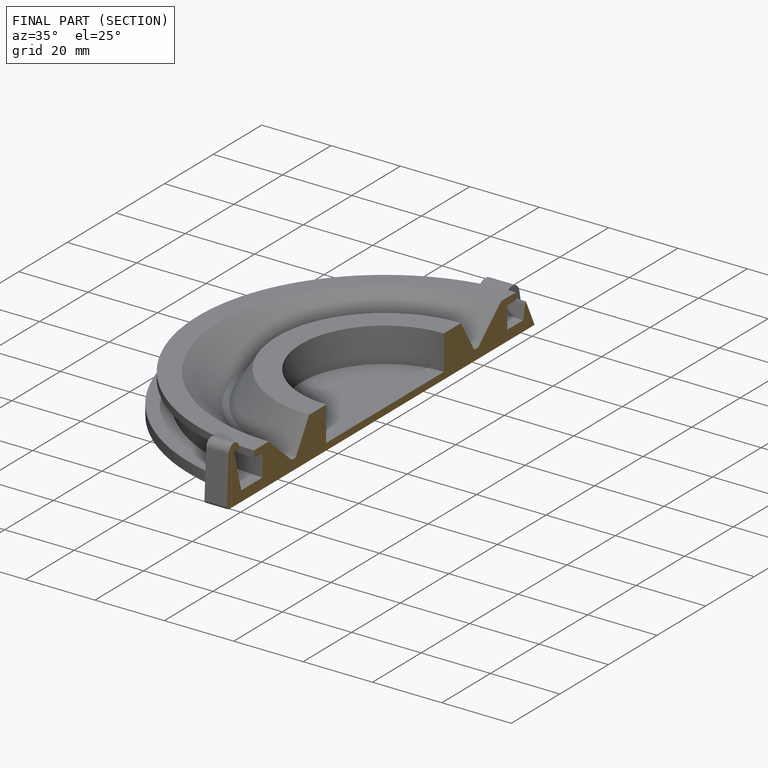
[diagram: finished part — half-section view (interior)]
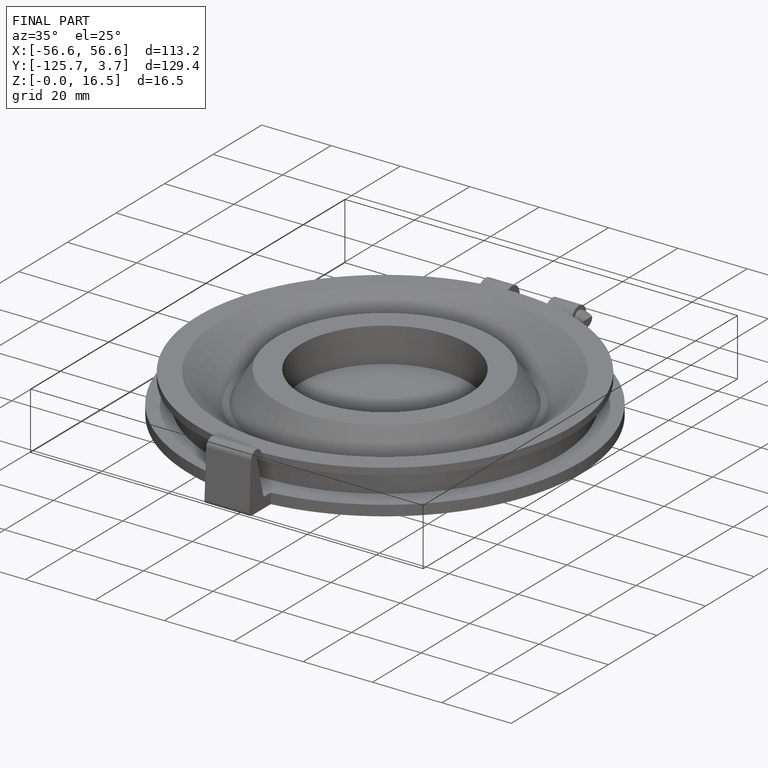
[diagram: finished part — iso view with bounding-box wireframe]
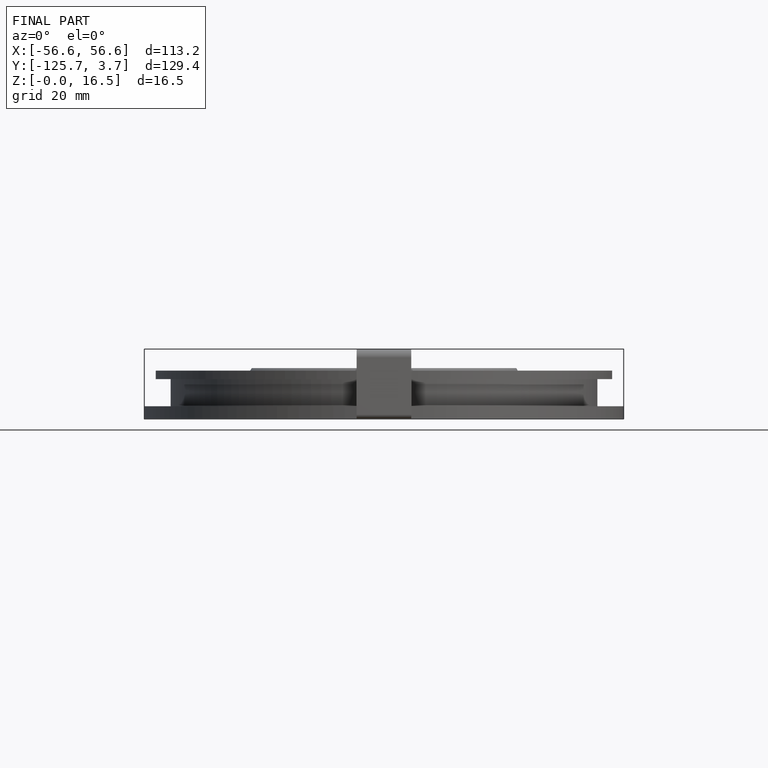
[diagram: finished part — front view with bounding-box wireframe]
